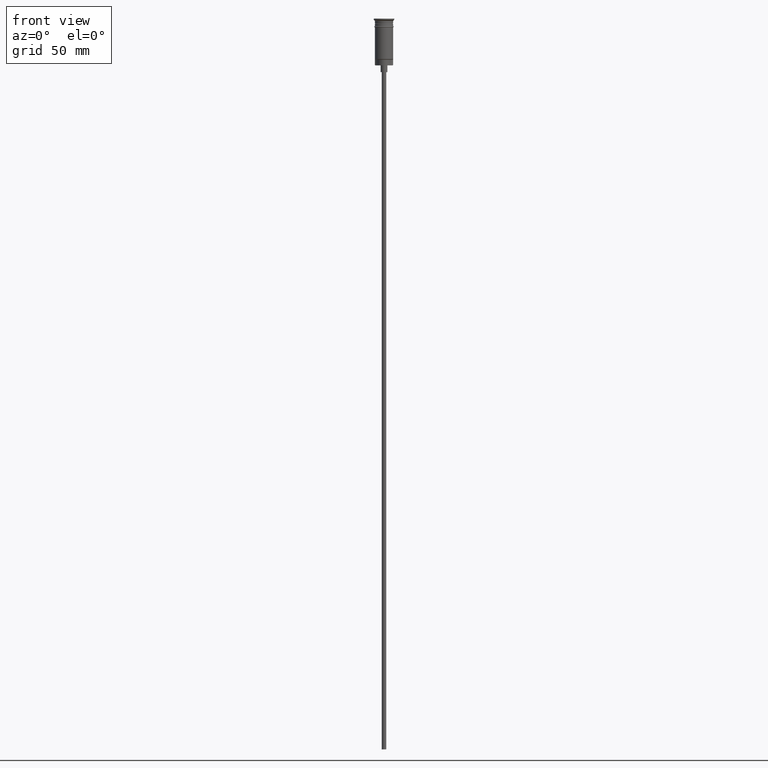
[diagram: clean part render]
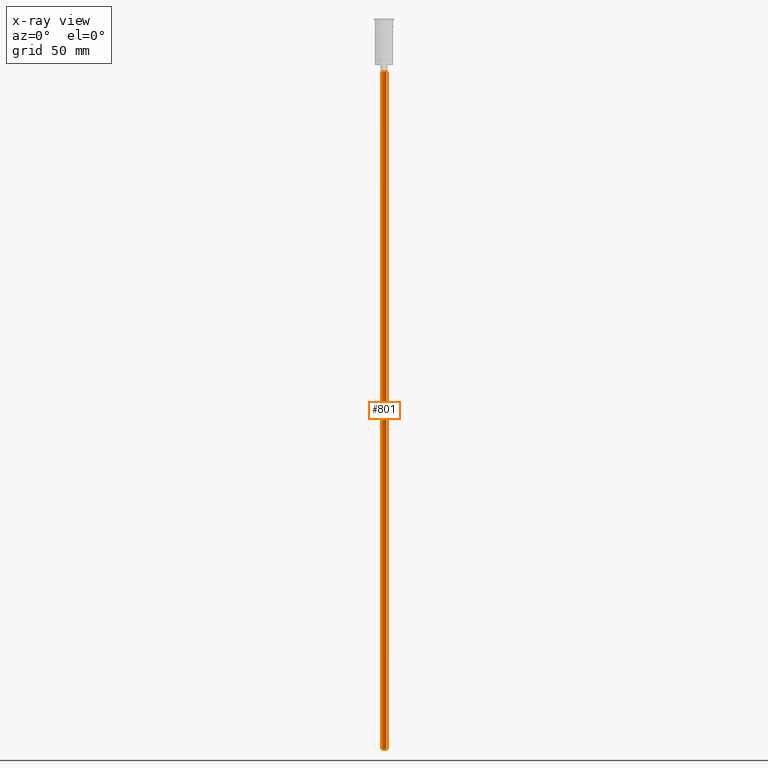
[diagram: x-ray — body ghosted, one internal face saturated and labeled with its STEP entity id]
A machine part, front view, then the same camera in x-ray: the body is ghosted and one INTERNAL B-rep face — a face not visible from any outside direction — is saturated and labeled: STEP entity #801.
In plain terms, the highlighted cylindrical surface (edge-blend (fillet) strip) has radius 1 mm, axis along (-0, -0, 1).
Its self-contained STEP definition (entity closure, byte-faithful):
#13 = ORIENTED_EDGE ( 'NONE', *, *, #1299, .F. ) ;
#97 = VERTEX_POINT ( 'NONE', #340 ) ;
#102 = ORIENTED_EDGE ( 'NONE', *, *, #950, .F. ) ;
#140 = CARTESIAN_POINT ( 'NONE',  ( 0.000000000000000000, 0.000000000000000000, -23.49999999999999645 ) ) ;
#142 = ORIENTED_EDGE ( 'NONE', *, *, #530, .T. ) ;
#317 = AXIS2_PLACEMENT_3D ( 'NONE', #1047, #1415, #1587 ) ;
#340 = CARTESIAN_POINT ( 'NONE',  ( -0.9999999999999997780, 1.224646799147352961E-16, -23.49999999999999645 ) ) ;
#400 = DIRECTION ( 'NONE',  ( -1.000000000000000000, 0.000000000000000000, 0.000000000000000000 ) ) ;
#455 = FACE_OUTER_BOUND ( 'NONE', #848, .T. ) ;
#500 = VECTOR ( 'NONE', #1454, 1000.000000000000000 ) ;
#502 = CIRCLE ( 'NONE', #787, 0.9999999999999997780 ) ;
#530 = EDGE_CURVE ( 'NONE', #1201, #97, #1192, .T. ) ;
#578 = CARTESIAN_POINT ( 'NONE',  ( -0.9999999999999997780, 1.224646799147352961E-16, -320.5000000000000000 ) ) ;
#609 = DIRECTION ( 'NONE',  ( 0.000000000000000000, 0.000000000000000000, -1.000000000000000000 ) ) ;
#655 = VECTOR ( 'NONE', #1448, 1000.000000000000000 ) ;
#698 = VERTEX_POINT ( 'NONE', #815 ) ;
#749 = VERTEX_POINT ( 'NONE', #1497 ) ;
#774 = LINE ( 'NONE', #1173, #655 ) ;
#787 = AXIS2_PLACEMENT_3D ( 'NONE', #907, #1163, #400 ) ;
#801 = ADVANCED_FACE ( 'NONE', ( #455 ), #1170, .T. ) ;
#813 = AXIS2_PLACEMENT_3D ( 'NONE', #140, #609, #1471 ) ;
#815 = CARTESIAN_POINT ( 'NONE',  ( 0.9999999999999997780, 0.000000000000000000, -320.5000000000000000 ) ) ;
#848 = EDGE_LOOP ( 'NONE', ( #13, #142, #1186, #102 ) ) ;
#907 = CARTESIAN_POINT ( 'NONE',  ( 0.000000000000000000, 0.000000000000000000, -320.5000000000000000 ) ) ;
#950 = EDGE_CURVE ( 'NONE', #698, #749, #774, .T. ) ;
#1047 = CARTESIAN_POINT ( 'NONE',  ( 0.000000000000000000, 0.000000000000000000, -320.5000000000000000 ) ) ;
#1163 = DIRECTION ( 'NONE',  ( 0.000000000000000000, 0.000000000000000000, -1.000000000000000000 ) ) ;
#1170 = CYLINDRICAL_SURFACE ( 'NONE', #317, 0.9999999999999997780 ) ;
#1173 = CARTESIAN_POINT ( 'NONE',  ( 0.9999999999999997780, 0.000000000000000000, -320.5000000000000000 ) ) ;
#1186 = ORIENTED_EDGE ( 'NONE', *, *, #1221, .T. ) ;
#1192 = LINE ( 'NONE', #578, #500 ) ;
#1201 = VERTEX_POINT ( 'NONE', #1237 ) ;
#1221 = EDGE_CURVE ( 'NONE', #97, #749, #1402, .T. ) ;
#1237 = CARTESIAN_POINT ( 'NONE',  ( -0.9999999999999997780, 1.224646799147352961E-16, -320.5000000000000000 ) ) ;
#1299 = EDGE_CURVE ( 'NONE', #1201, #698, #502, .T. ) ;
#1402 = CIRCLE ( 'NONE', #813, 0.9999999999999997780 ) ;
#1415 = DIRECTION ( 'NONE',  ( -0.000000000000000000, -0.000000000000000000, 1.000000000000000000 ) ) ;
#1448 = DIRECTION ( 'NONE',  ( -0.000000000000000000, -0.000000000000000000, 1.000000000000000000 ) ) ;
#1454 = DIRECTION ( 'NONE',  ( -0.000000000000000000, -0.000000000000000000, 1.000000000000000000 ) ) ;
#1471 = DIRECTION ( 'NONE',  ( -1.000000000000000000, 0.000000000000000000, 0.000000000000000000 ) ) ;
#1497 = CARTESIAN_POINT ( 'NONE',  ( 0.9999999999999997780, 0.000000000000000000, -23.49999999999999645 ) ) ;
#1587 = DIRECTION ( 'NONE',  ( 1.000000000000000000, 0.000000000000000000, 0.000000000000000000 ) ) ;